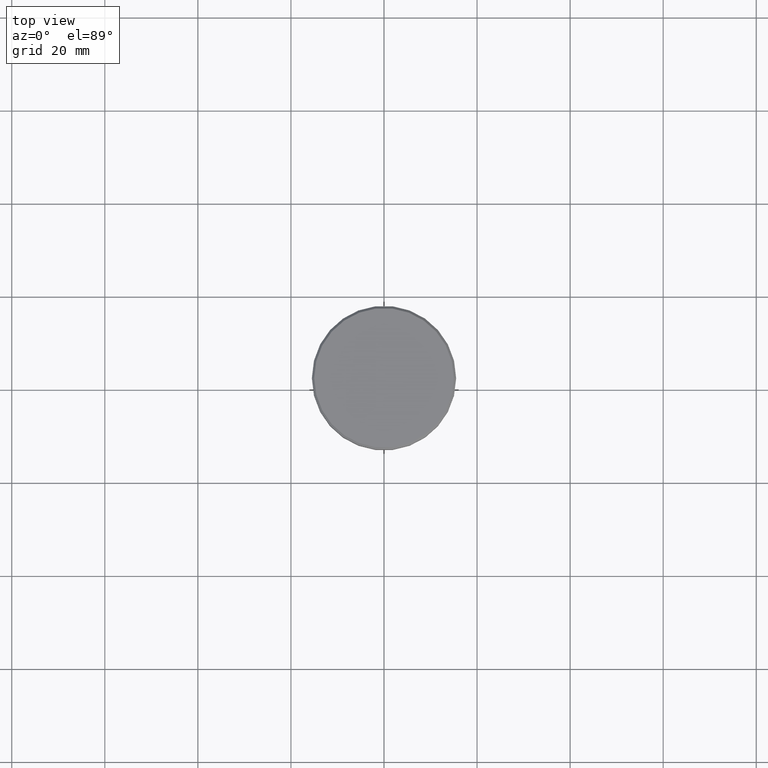
[diagram: clean part render]
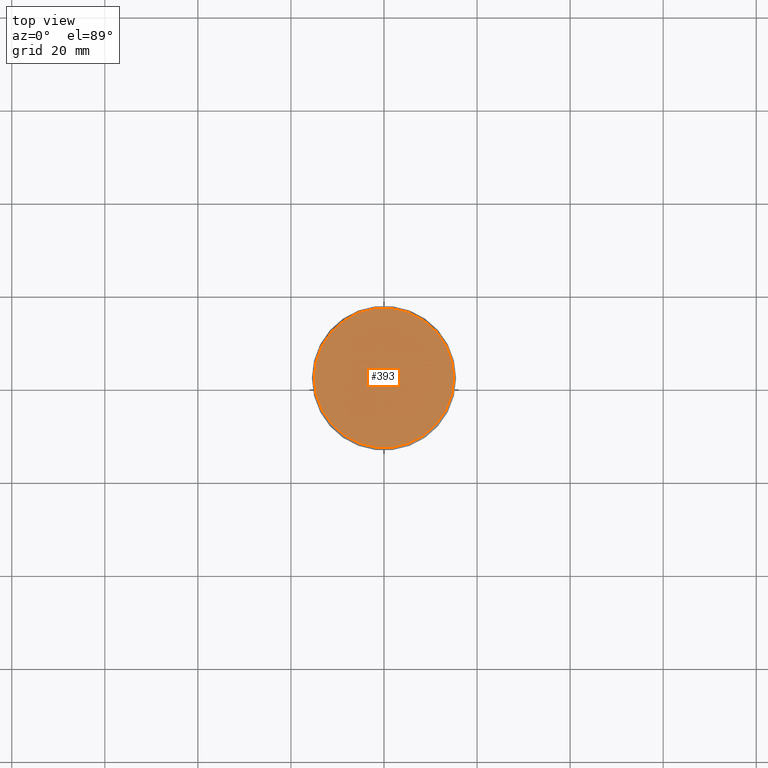
[diagram: same view with one face highlighted and labeled with its STEP entity id]
A machine part, top view. The second image highlights one B-rep face of the part: STEP entity #393.
In plain terms, the highlighted planar face has unit normal (0, -0, 1).
Its self-contained STEP definition (entity closure, byte-faithful):
#49 = DIRECTION ( 'NONE',  ( -0.000000000000000000, -0.000000000000000000, 1.000000000000000000 ) ) ;
#137 = DIRECTION ( 'NONE',  ( 1.000000000000000000, 0.000000000000000000, 0.000000000000000000 ) ) ;
#146 = DIRECTION ( 'NONE',  ( 1.000000000000000000, 0.000000000000000000, 0.000000000000000000 ) ) ;
#354 = CIRCLE ( 'NONE', #984, 14.99999999999997158 ) ;
#380 = EDGE_LOOP ( 'NONE', ( #694, #568 ) ) ;
#393 = ADVANCED_FACE ( 'NONE', ( #859 ), #682, .T. ) ;
#425 = AXIS2_PLACEMENT_3D ( 'NONE', #593, #782, #137 ) ;
#486 = VERTEX_POINT ( 'NONE', #932 ) ;
#568 = ORIENTED_EDGE ( 'NONE', *, *, #715, .T. ) ;
#593 = CARTESIAN_POINT ( 'NONE',  ( 0.000000000000000000, 0.000000000000000000, 0.000000000000000000 ) ) ;
#678 = CARTESIAN_POINT ( 'NONE',  ( 0.000000000000000000, 0.000000000000000000, 0.000000000000000000 ) ) ;
#682 = PLANE ( 'NONE',  #425 ) ;
#683 = CARTESIAN_POINT ( 'NONE',  ( -14.99999999999997158, 0.000000000000000000, 0.000000000000000000 ) ) ;
#694 = ORIENTED_EDGE ( 'NONE', *, *, #914, .T. ) ;
#715 = EDGE_CURVE ( 'NONE', #486, #952, #724, .T. ) ;
#724 = CIRCLE ( 'NONE', #817, 14.99999999999997158 ) ;
#782 = DIRECTION ( 'NONE',  ( 0.000000000000000000, -0.000000000000000000, 1.000000000000000000 ) ) ;
#817 = AXIS2_PLACEMENT_3D ( 'NONE', #868, #49, #146 ) ;
#859 = FACE_OUTER_BOUND ( 'NONE', #380, .T. ) ;
#866 = DIRECTION ( 'NONE',  ( -0.000000000000000000, -0.000000000000000000, 1.000000000000000000 ) ) ;
#868 = CARTESIAN_POINT ( 'NONE',  ( 0.000000000000000000, 0.000000000000000000, 0.000000000000000000 ) ) ;
#914 = EDGE_CURVE ( 'NONE', #952, #486, #354, .T. ) ;
#932 = CARTESIAN_POINT ( 'NONE',  ( 14.99999999999997158, 1.867586368699711798E-15, 0.000000000000000000 ) ) ;
#952 = VERTEX_POINT ( 'NONE', #683 ) ;
#984 = AXIS2_PLACEMENT_3D ( 'NONE', #678, #866, #1048 ) ;
#1048 = DIRECTION ( 'NONE',  ( 1.000000000000000000, 0.000000000000000000, 0.000000000000000000 ) ) ;